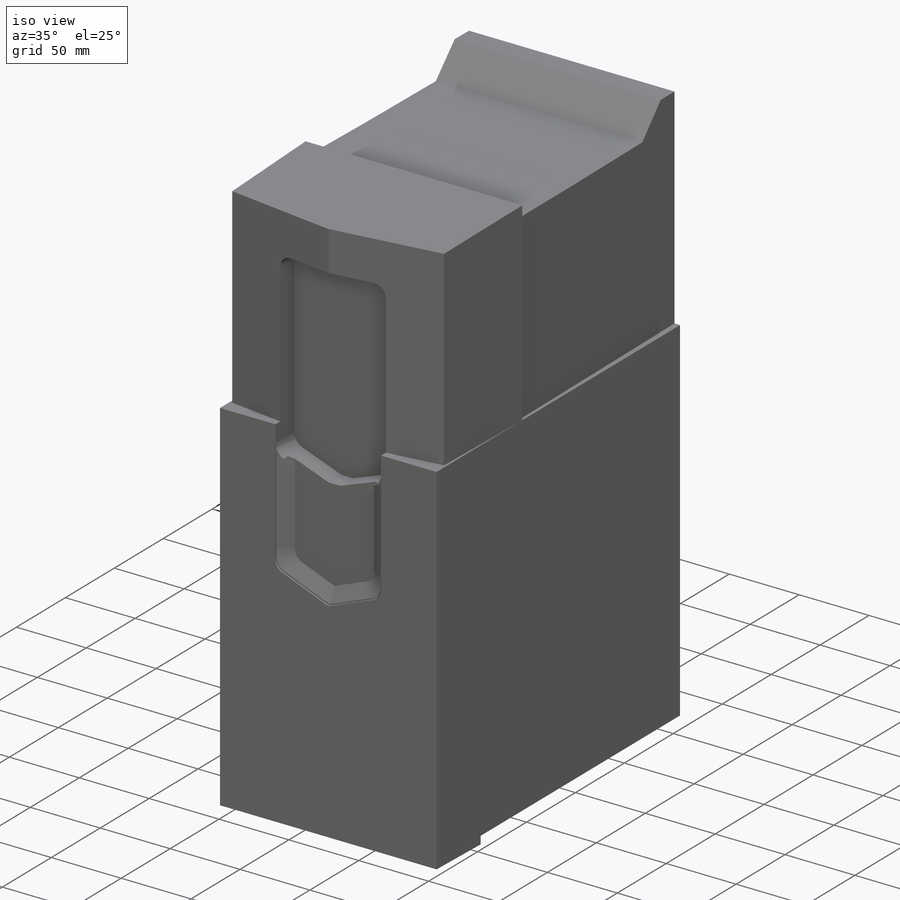
[diagram: iso view]
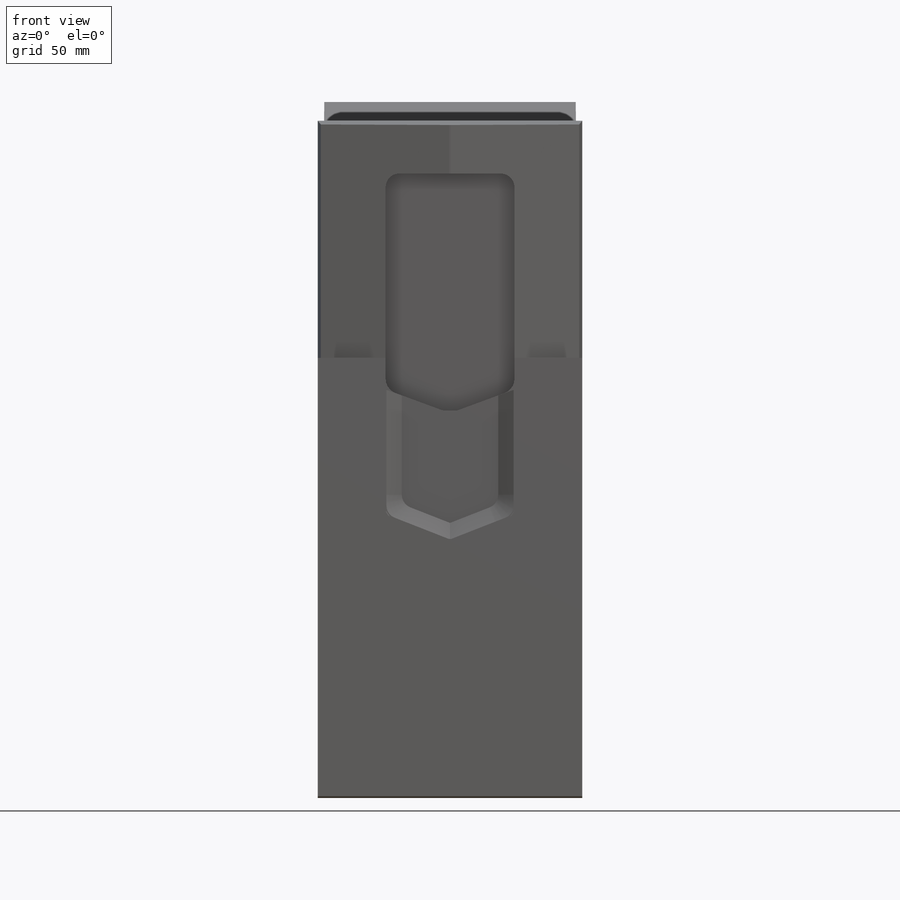
[diagram: front view]
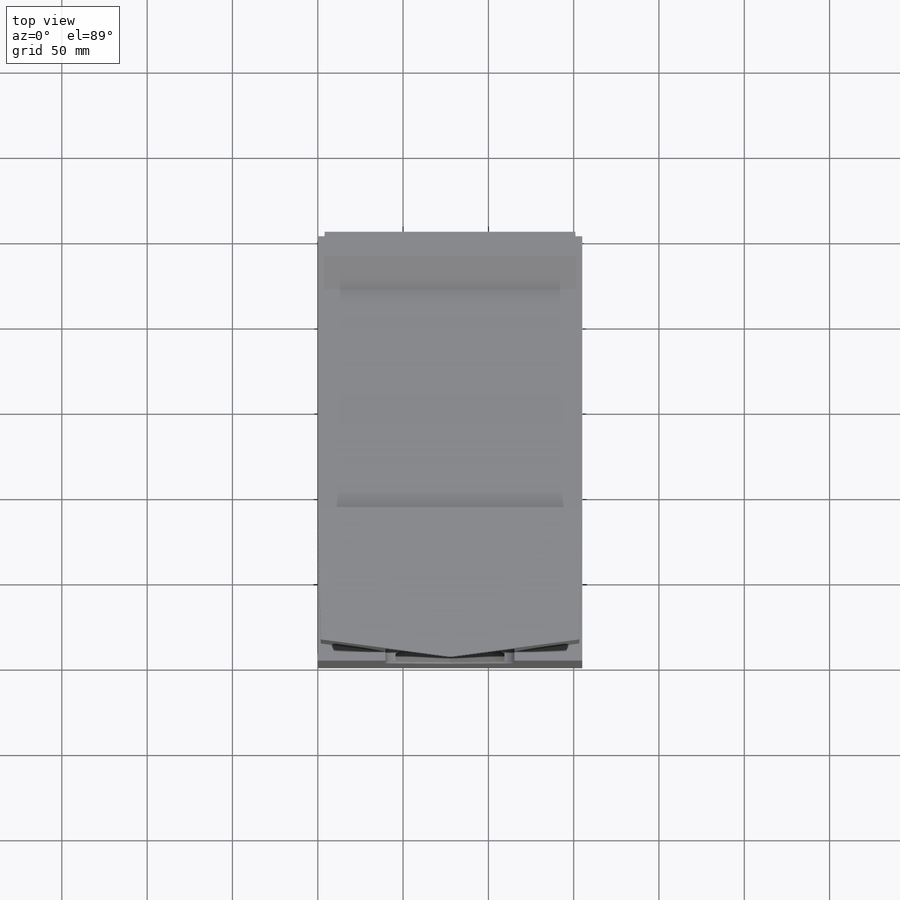
[diagram: top view]
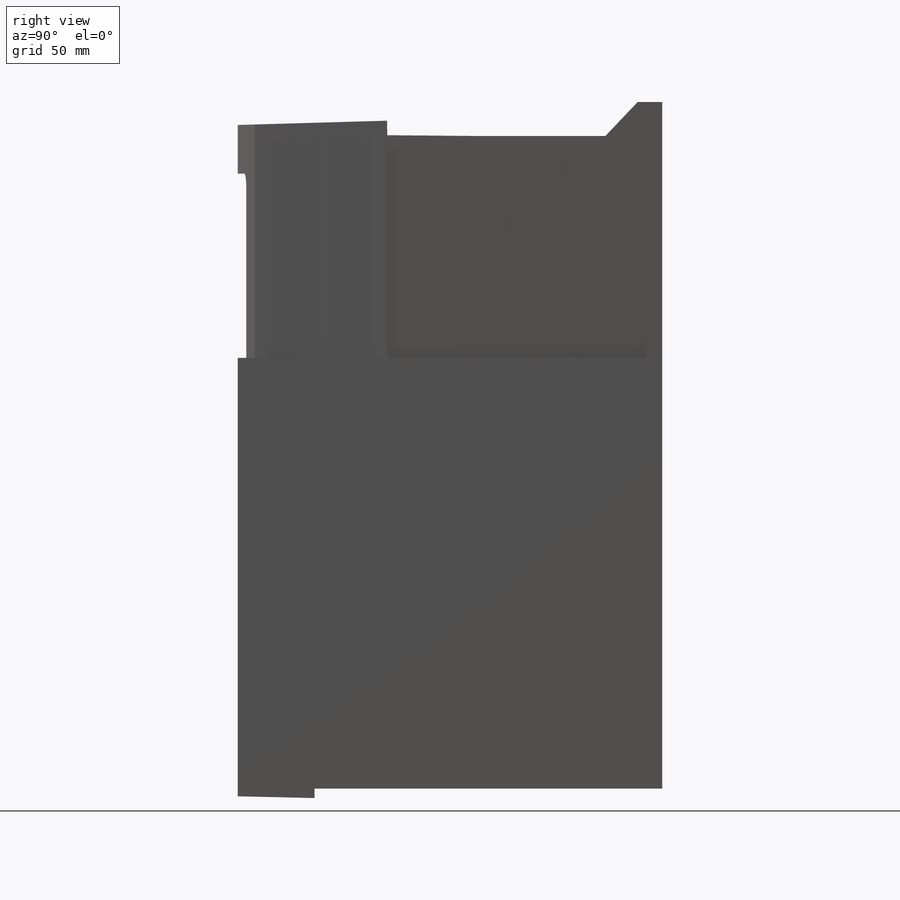
[diagram: right view]
SOLIDWORKS PART (.sldprt)
format: sldprt  version: not decoded by parser v0  size: 1,794,048 bytes
history: native  units: mm
features: sketch x10, cut_extrude x3, material x1, extrude x1 (+13 scaffold rows collapsed)
feature tree (28):
  scaffold x13  (default folders/planes/origin — collapsed)
  material  "Material <not specified>"
  sketch  "Model"  dims[D1=249.0mm D2=~374.243283mm D3=~163.89403mm]
  sketch  "Sketch4"  dims[c1.D1=409.0mm c1.D2=~2773.90663mm c2.D1=409.0mm c2.D2=~410.963257mm c3.D1=14.0mm c3.D2=20.0mm c3.D3=~33.106784mm c3.D4=6.5mm c3.D5=~20.000863mm c4.D2=33.0mm c4.D3=0.5mm c4.D5=14.0mm c4.D1=~235.14183mm c5.D5=~235.729348mm c5.D1=249.0mm c5.D2=104.0mm c6.D5=33.0mm c6.D6=57.0mm c6.D7=2.5mm c6.D1=3.0mm c6.D8=4.0mm c6.D9=1.5mm c6.D10=8.5mm c7.D9=27.0mm c7.D11=217.5mm c7.D12=13.25mm c7.D13=4.5mm c7.D14=~333.118047mm c8.D14=~0.095866deg c9.D14=2.0mm c9.D15=2.5mm c9.D1=87.5mm c9.D2=249.0mm c9.D3=45.0mm c9.D4=2.0mm c9.D5=402.5mm c10.D3=45.0mm c10.D5=29.0mm c10.D6=4.5mm c10.D1=~140.255006deg]
  sketch  "Countures"  dims[D1=~393.384959mm D2=~401.130371mm]
  extrude  "Boss-Extrude3"  Depth=155mm
  sketch  "Sketch6"  dims[c1.D3=8.0mm c1.D4=8.0mm c1.D1=2.0mm c1.D2=2.0mm c2.D3=3.5mm]
  sketch  "Sketch7"  dims[c1.D3=8.0mm c1.D4=8.0mm c1.D1=2.0mm c1.D2=2.0mm c2.D3=3.5mm]
  sketch  "Sketch8"
  cut_extrude  "Cut-Extrude1"  Depth=19.25mm
  sketch  "Sketch11"  dims[c1.D3=8.0mm c1.D4=8.0mm c1.D1=2.0mm c1.D2=2.0mm c2.D3=3.5mm c2.D1=1.0mm c2.D5=1.0mm c2.D6=1.0mm c2.D7=5.0mm]
  sketch  "Sketch10"  dims[c1.D3=8.0mm c1.D4=8.0mm c1.D1=2.0mm c1.D2=2.0mm c2.D3=~8.182086mm c2.D1=~9.084585mm c2.D2=~9.084566mm c3.D3=3.5mm c3.D1=3.0mm c3.D2=3.0mm]
  cut_extrude  "Cut-Extrude3"  Depth=6.25mm
  sketch  "Sketch5"  dims[c1.D1=10.0mm c1.D2=10.0mm c1.D3=87.5mm c1.D4=87.5mm c1.D5=2.0mm c1.D6=4.5mm c1.D7=2.0mm c1.D8=2.0mm c1.D9=2.0mm c1.D10=2.0mm c1.D11=2.0mm c1.D12=35.0mm c1.D13=249.0mm c2.D1=1.0mm c2.D2=77.5mm c2.D3=~76.088593mm c2.D4=155.0mm c3.D3=77.0mm c3.D2=77.0mm c3.D1=2.0mm c3.D4=2.0mm c3.D5=10.0mm c3.D6=2.0mm c4.D4=2.0mm c4.D6=10.0mm c4.D7=2.0mm c4.D1=87.5mm c5.D4=87.5mm c5.D5=2.0mm c5.D6=2.0mm c5.D7=~3.983822mm c5.D8=~4.806638mm c5.D9=147.0mm]
  cut_extrude  "Cut-Extrude4"  Depth=150mm
  sketch  "Sketch9"  dims[c1.D1=409.0mm c1.D2=~2773.90663mm c2.D1=409.0mm c2.D2=~410.963257mm c3.D1=14.0mm c3.D2=20.0mm c3.D3=~33.106784mm c3.D4=6.5mm c3.D5=~20.000863mm c4.D2=33.0mm c4.D3=0.5mm c4.D5=14.0mm c4.D1=~235.14183mm c5.D5=~235.729348mm c5.D1=249.0mm c5.D2=104.0mm c6.D5=33.0mm c6.D6=57.0mm c6.D7=2.5mm c6.D1=3.0mm c6.D8=4.0mm c6.D9=1.5mm c6.D10=8.5mm c7.D9=27.0mm c7.D11=217.5mm c7.D12=13.25mm c7.D13=4.5mm c7.D14=~333.118047mm c8.D14=~0.095866deg c9.D14=2.0mm c9.D15=2.5mm c9.D1=87.5mm c9.D2=249.0mm c9.D3=45.0mm c9.D4=2.0mm c9.D5=402.5mm c10.D3=45.0mm c10.D5=29.0mm c10.D6=4.5mm c10.D1=~140.255006deg]
decode coverage: 13 of 14 modeling features carry decoded parameters
note: ~ marks probable driven/reference dimensions
note: suppression state not decoded; provenance and decode notes live in map.json
